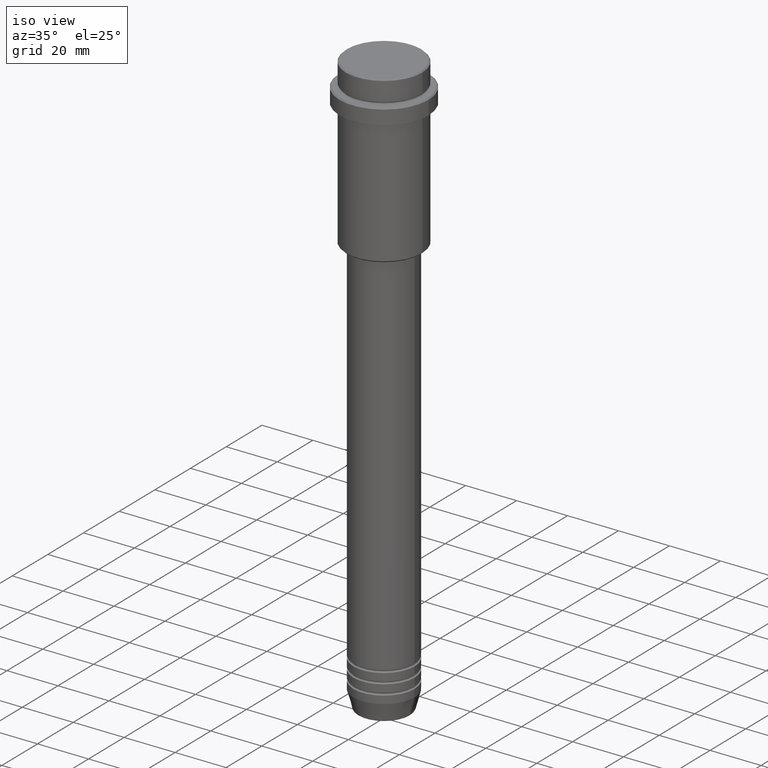
[diagram: clean part render]
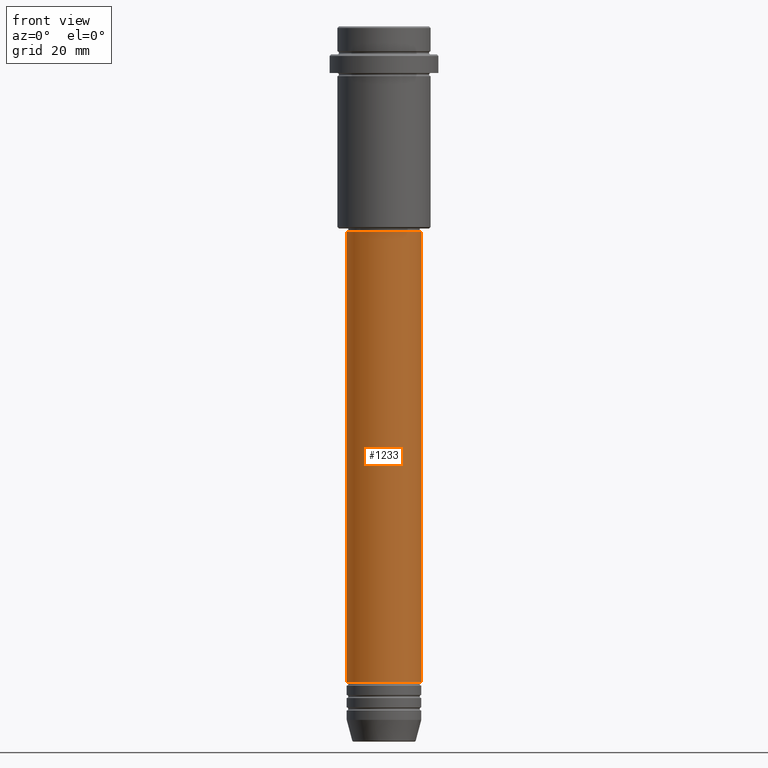
[diagram: tour spotlight — one face highlighted and labeled with its STEP entity id]
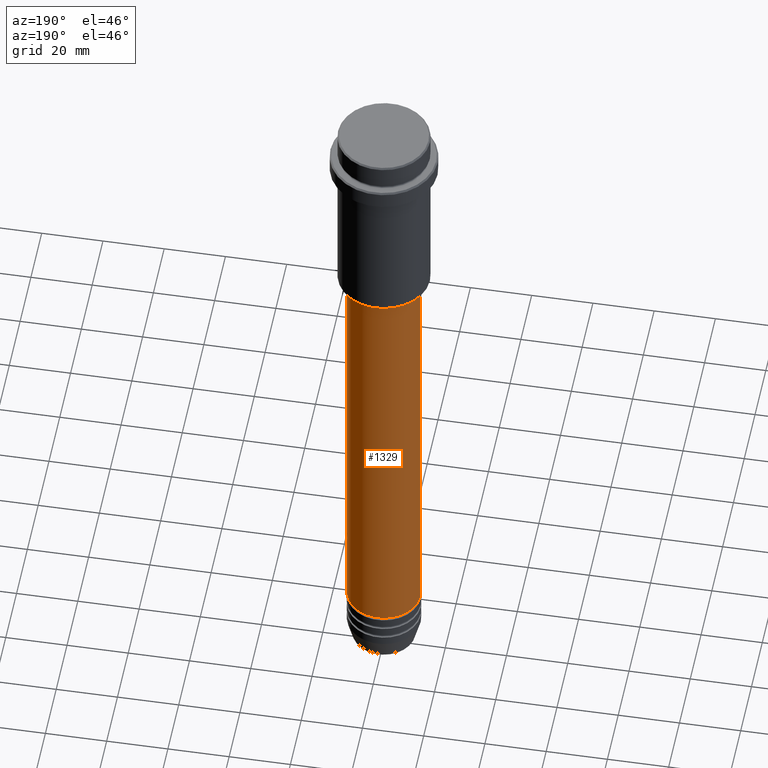
[diagram: tour spotlight — one face highlighted and labeled with its STEP entity id]
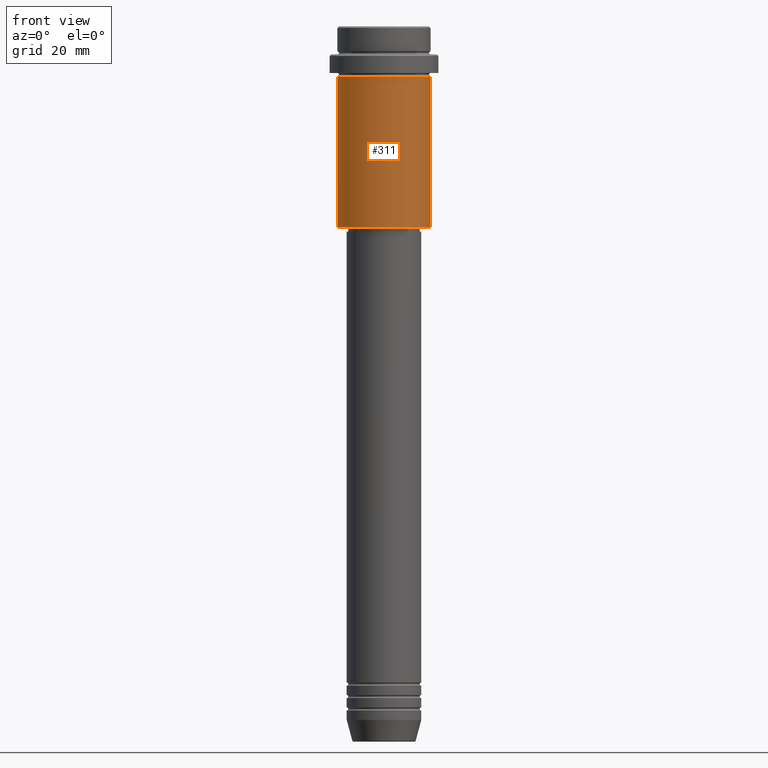
[diagram: tour spotlight — one face highlighted and labeled with its STEP entity id]
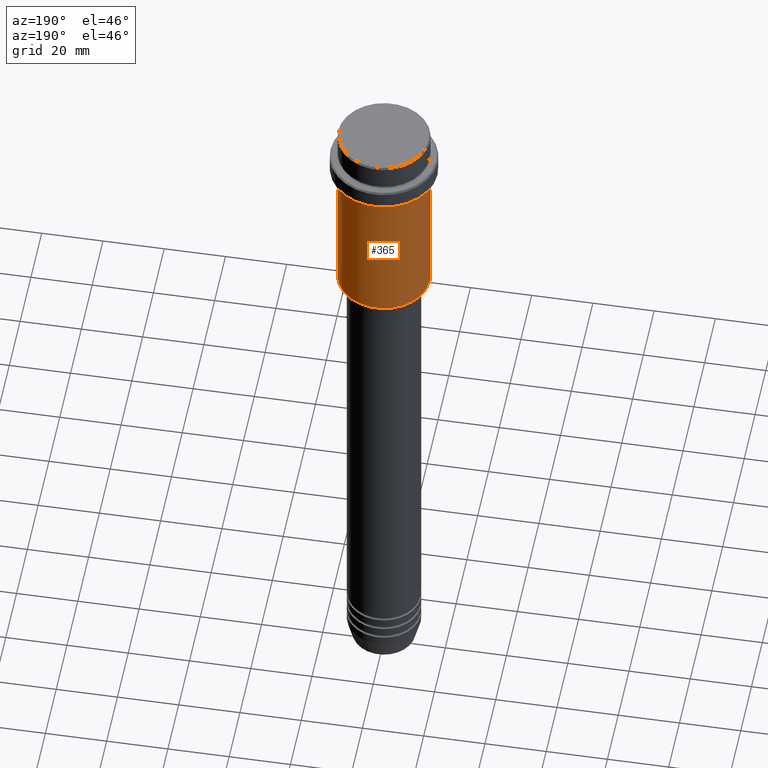
[diagram: tour spotlight — one face highlighted and labeled with its STEP entity id]
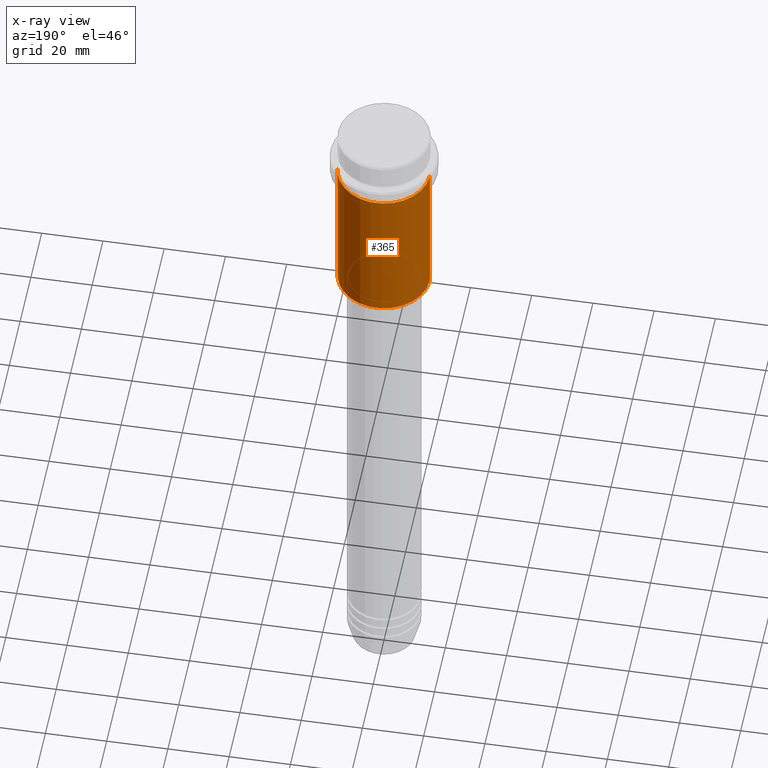
[diagram: x-ray of the same camera — body ghosted, this tour face saturated]
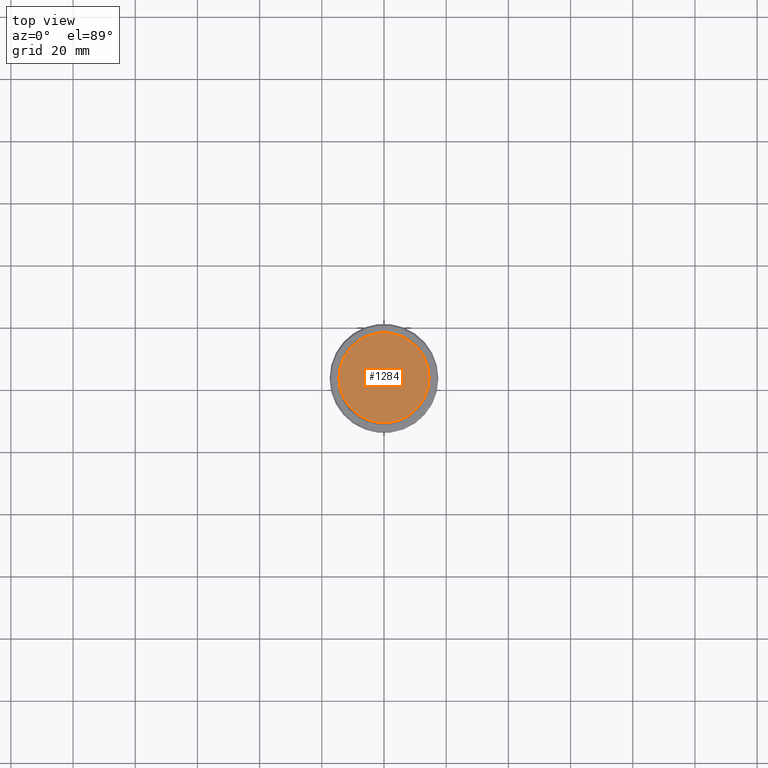
[diagram: tour spotlight — one face highlighted and labeled with its STEP entity id]
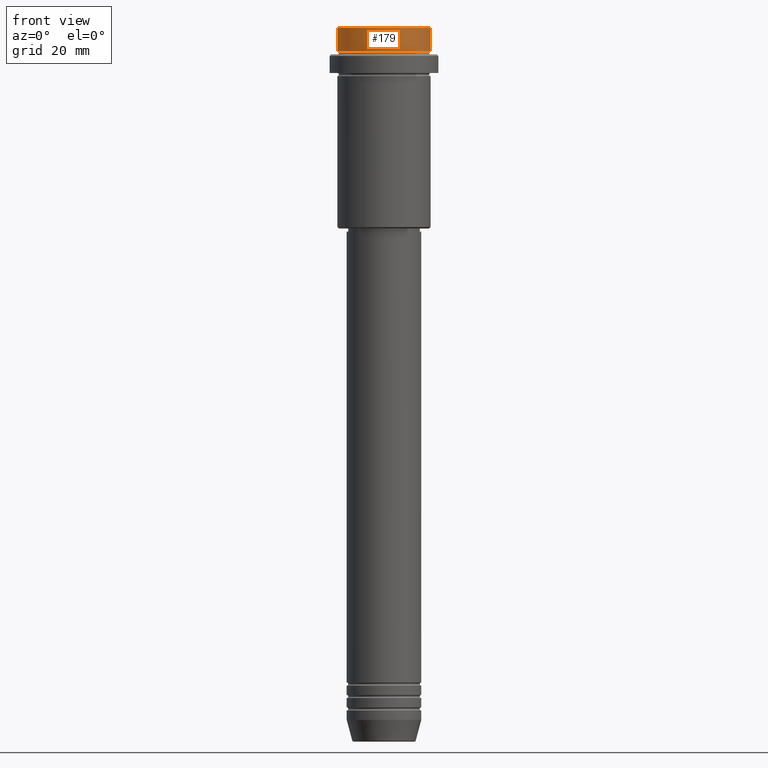
[diagram: tour spotlight — one face highlighted and labeled with its STEP entity id]
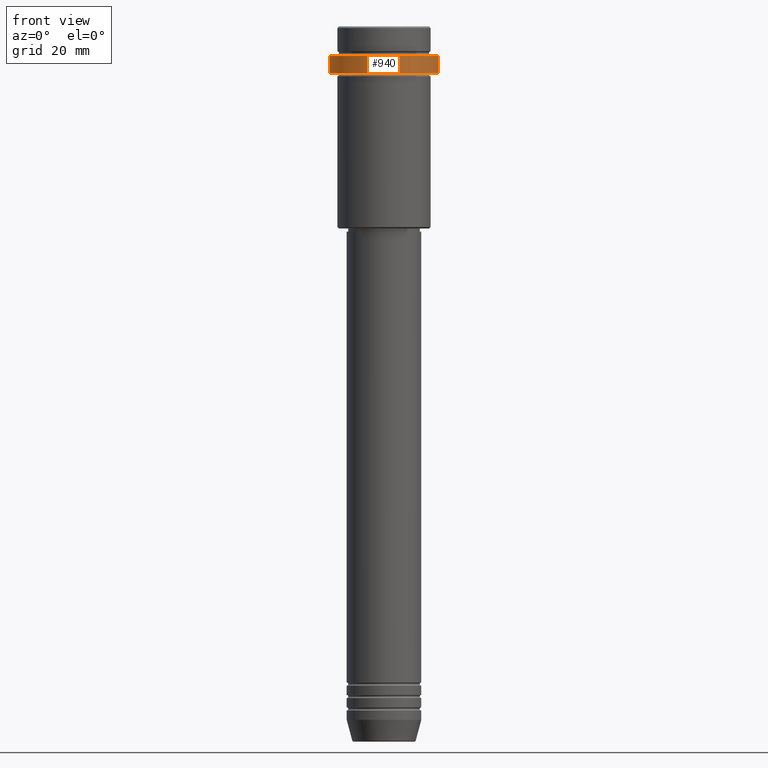
[diagram: tour spotlight — one face highlighted and labeled with its STEP entity id]
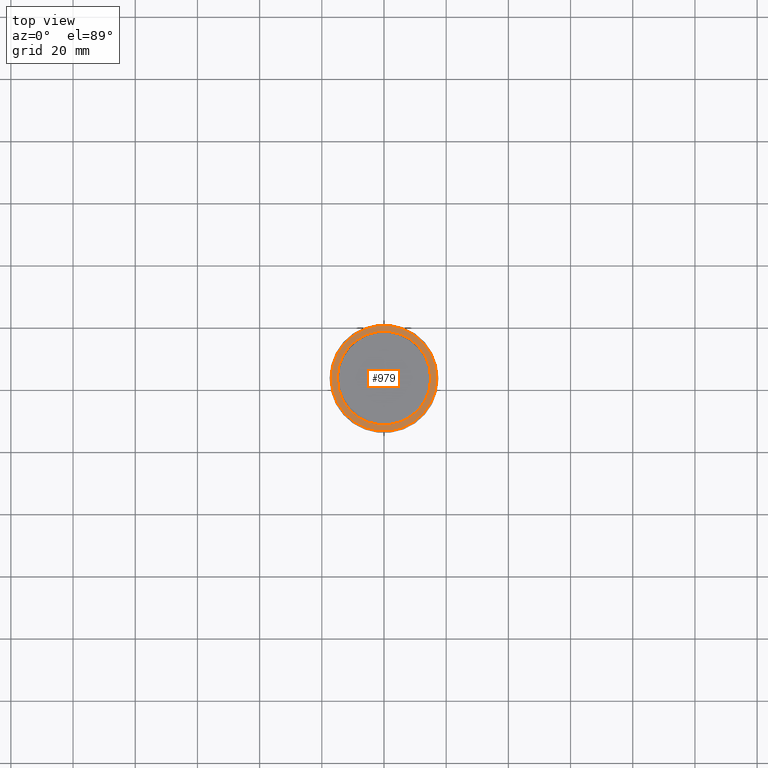
[diagram: tour spotlight — one face highlighted and labeled with its STEP entity id]
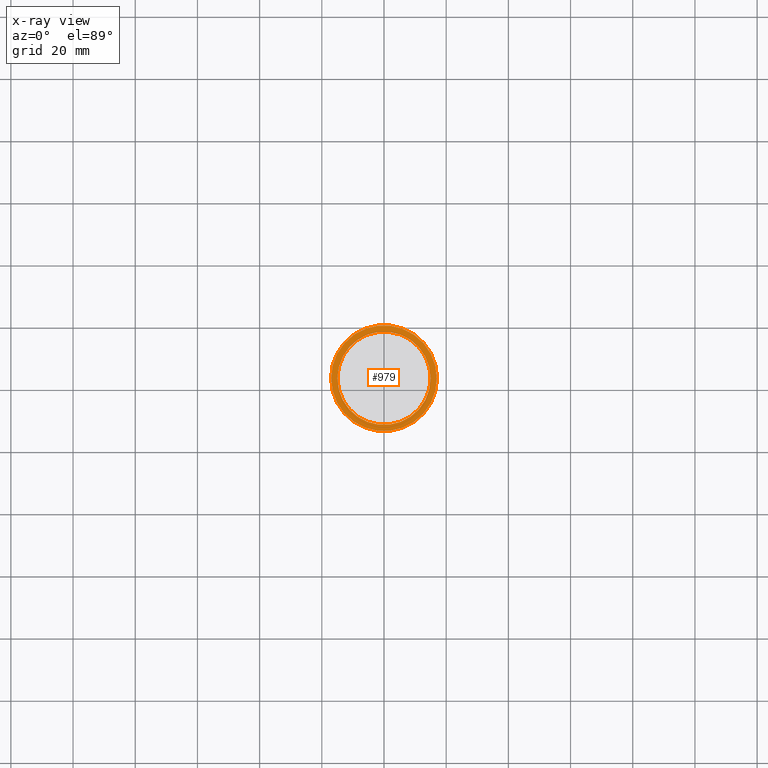
[diagram: x-ray of the same camera — body ghosted, this tour face saturated]
A machine part: a face-by-face anatomy tour. The part has 52 B-rep faces; the first image is the clean iso view, then the 8 largest visible faces are spotlighted one at a time (largest first), each with its STEP entity span.

Face 1 — front view, entity #1233. In plain terms, the highlighted cylindrical surface (partial cylindrical patch) has radius 12 mm, axis along (-0, -0, 1).
Definition (entity closure, byte-faithful):
#15 = DIRECTION ( 'NONE',  ( 1.000000000000000000, 0.000000000000000000, 0.000000000000000000 ) ) ;
#23 = CARTESIAN_POINT ( 'NONE',  ( 12.00000000000000000, 0.000000000000000000, -210.9999999999999147 ) ) ;
#28 = CARTESIAN_POINT ( 'NONE',  ( 0.000000000000000000, 0.000000000000000000, -66.00000000000000000 ) ) ;
#44 = DIRECTION ( 'NONE',  ( 1.000000000000000000, 0.000000000000000000, 0.000000000000000000 ) ) ;
#58 = VECTOR ( 'NONE', #211, 1000.000000000000000 ) ;
#62 = ORIENTED_EDGE ( 'NONE', *, *, #1092, .F. ) ;
#77 = VERTEX_POINT ( 'NONE', #1183 ) ;
#155 = CARTESIAN_POINT ( 'NONE',  ( 0.000000000000000000, 0.000000000000000000, -210.9999999999999147 ) ) ;
#160 = VERTEX_POINT ( 'NONE', #743 ) ;
#169 = DIRECTION ( 'NONE',  ( -0.000000000000000000, -0.000000000000000000, 1.000000000000000000 ) ) ;
#170 = DIRECTION ( 'NONE',  ( 1.000000000000000000, 0.000000000000000000, 0.000000000000000000 ) ) ;
#211 = DIRECTION ( 'NONE',  ( -0.000000000000000000, -0.000000000000000000, 1.000000000000000000 ) ) ;
#249 = VERTEX_POINT ( 'NONE', #23 ) ;
#282 = LINE ( 'NONE', #1116, #1068 ) ;
#338 = CIRCLE ( 'NONE', #797, 11.99999999999999822 ) ;
#363 = CIRCLE ( 'NONE', #848, 12.00000000000000000 ) ;
#398 = ORIENTED_EDGE ( 'NONE', *, *, #923, .T. ) ;
#560 = CYLINDRICAL_SURFACE ( 'NONE', #1181, 12.00000000000000000 ) ;
#599 = EDGE_CURVE ( 'NONE', #1245, #160, #338, .T. ) ;
#644 = CARTESIAN_POINT ( 'NONE',  ( -12.00000000000000000, 1.469576158976823947E-15, 0.000000000000000000 ) ) ;
#714 = EDGE_LOOP ( 'NONE', ( #62, #398, #798, #1243 ) ) ;
#743 = CARTESIAN_POINT ( 'NONE',  ( 11.99999999999999822, 0.000000000000000000, -66.00000000000000000 ) ) ;
#797 = AXIS2_PLACEMENT_3D ( 'NONE', #28, #1235, #44 ) ;
#798 = ORIENTED_EDGE ( 'NONE', *, *, #1306, .T. ) ;
#848 = AXIS2_PLACEMENT_3D ( 'NONE', #155, #1346, #170 ) ;
#923 = EDGE_CURVE ( 'NONE', #77, #249, #363, .T. ) ;
#992 = CARTESIAN_POINT ( 'NONE',  ( 0.000000000000000000, 0.000000000000000000, 0.000000000000000000 ) ) ;
#996 = CARTESIAN_POINT ( 'NONE',  ( -11.99999999999999822, 1.469576158976823750E-15, -66.00000000000000000 ) ) ;
#1068 = VECTOR ( 'NONE', #169, 1000.000000000000000 ) ;
#1092 = EDGE_CURVE ( 'NONE', #77, #1245, #1392, .T. ) ;
#1100 = DIRECTION ( 'NONE',  ( -0.000000000000000000, -0.000000000000000000, 1.000000000000000000 ) ) ;
#1116 = CARTESIAN_POINT ( 'NONE',  ( 12.00000000000000000, 0.000000000000000000, 0.000000000000000000 ) ) ;
#1181 = AXIS2_PLACEMENT_3D ( 'NONE', #992, #1100, #15 ) ;
#1183 = CARTESIAN_POINT ( 'NONE',  ( -12.00000000000000000, 1.469576158976823947E-15, -210.9999999999999147 ) ) ;
#1233 = ADVANCED_FACE ( 'NONE', ( #1330 ), #560, .T. ) ;
#1235 = DIRECTION ( 'NONE',  ( -0.000000000000000000, -0.000000000000000000, 1.000000000000000000 ) ) ;
#1243 = ORIENTED_EDGE ( 'NONE', *, *, #599, .F. ) ;
#1245 = VERTEX_POINT ( 'NONE', #996 ) ;
#1306 = EDGE_CURVE ( 'NONE', #249, #160, #282, .T. ) ;
#1330 = FACE_OUTER_BOUND ( 'NONE', #714, .T. ) ;
#1346 = DIRECTION ( 'NONE',  ( -0.000000000000000000, -0.000000000000000000, 1.000000000000000000 ) ) ;
#1392 = LINE ( 'NONE', #644, #58 ) ;

Face 2 — auxiliary view, entity #1329. In plain terms, the highlighted cylindrical surface (partial cylindrical patch) has radius 12 mm, axis along (-0, -0, 1).
Definition (entity closure, byte-faithful):
#4 = ORIENTED_EDGE ( 'NONE', *, *, #1092, .T. ) ;
#23 = CARTESIAN_POINT ( 'NONE',  ( 12.00000000000000000, 0.000000000000000000, -210.9999999999999147 ) ) ;
#58 = VECTOR ( 'NONE', #211, 1000.000000000000000 ) ;
#77 = VERTEX_POINT ( 'NONE', #1183 ) ;
#160 = VERTEX_POINT ( 'NONE', #743 ) ;
#169 = DIRECTION ( 'NONE',  ( -0.000000000000000000, -0.000000000000000000, 1.000000000000000000 ) ) ;
#174 = ORIENTED_EDGE ( 'NONE', *, *, #1306, .F. ) ;
#211 = DIRECTION ( 'NONE',  ( -0.000000000000000000, -0.000000000000000000, 1.000000000000000000 ) ) ;
#233 = CARTESIAN_POINT ( 'NONE',  ( 0.000000000000000000, 0.000000000000000000, -66.00000000000000000 ) ) ;
#247 = AXIS2_PLACEMENT_3D ( 'NONE', #233, #1094, #1314 ) ;
#249 = VERTEX_POINT ( 'NONE', #23 ) ;
#282 = LINE ( 'NONE', #1116, #1068 ) ;
#303 = AXIS2_PLACEMENT_3D ( 'NONE', #490, #1260, #716 ) ;
#433 = EDGE_CURVE ( 'NONE', #160, #1245, #1406, .T. ) ;
#490 = CARTESIAN_POINT ( 'NONE',  ( 0.000000000000000000, 0.000000000000000000, 0.000000000000000000 ) ) ;
#541 = DIRECTION ( 'NONE',  ( -0.000000000000000000, -0.000000000000000000, 1.000000000000000000 ) ) ;
#598 = FACE_OUTER_BOUND ( 'NONE', #1202, .T. ) ;
#644 = CARTESIAN_POINT ( 'NONE',  ( -12.00000000000000000, 1.469576158976823947E-15, 0.000000000000000000 ) ) ;
#716 = DIRECTION ( 'NONE',  ( 1.000000000000000000, 0.000000000000000000, 0.000000000000000000 ) ) ;
#743 = CARTESIAN_POINT ( 'NONE',  ( 11.99999999999999822, 0.000000000000000000, -66.00000000000000000 ) ) ;
#799 = CIRCLE ( 'NONE', #1179, 12.00000000000000000 ) ;
#880 = CARTESIAN_POINT ( 'NONE',  ( 0.000000000000000000, 0.000000000000000000, -210.9999999999999147 ) ) ;
#996 = CARTESIAN_POINT ( 'NONE',  ( -11.99999999999999822, 1.469576158976823750E-15, -66.00000000000000000 ) ) ;
#1026 = EDGE_CURVE ( 'NONE', #249, #77, #799, .T. ) ;
#1068 = VECTOR ( 'NONE', #169, 1000.000000000000000 ) ;
#1092 = EDGE_CURVE ( 'NONE', #77, #1245, #1392, .T. ) ;
#1094 = DIRECTION ( 'NONE',  ( -0.000000000000000000, -0.000000000000000000, 1.000000000000000000 ) ) ;
#1116 = CARTESIAN_POINT ( 'NONE',  ( 12.00000000000000000, 0.000000000000000000, 0.000000000000000000 ) ) ;
#1179 = AXIS2_PLACEMENT_3D ( 'NONE', #880, #541, #1303 ) ;
#1183 = CARTESIAN_POINT ( 'NONE',  ( -12.00000000000000000, 1.469576158976823947E-15, -210.9999999999999147 ) ) ;
#1202 = EDGE_LOOP ( 'NONE', ( #1327, #4, #1337, #174 ) ) ;
#1245 = VERTEX_POINT ( 'NONE', #996 ) ;
#1260 = DIRECTION ( 'NONE',  ( -0.000000000000000000, -0.000000000000000000, 1.000000000000000000 ) ) ;
#1303 = DIRECTION ( 'NONE',  ( 1.000000000000000000, 0.000000000000000000, 0.000000000000000000 ) ) ;
#1306 = EDGE_CURVE ( 'NONE', #249, #160, #282, .T. ) ;
#1314 = DIRECTION ( 'NONE',  ( 1.000000000000000000, 0.000000000000000000, 0.000000000000000000 ) ) ;
#1327 = ORIENTED_EDGE ( 'NONE', *, *, #1026, .T. ) ;
#1329 = ADVANCED_FACE ( 'NONE', ( #598 ), #1340, .T. ) ;
#1337 = ORIENTED_EDGE ( 'NONE', *, *, #433, .F. ) ;
#1340 = CYLINDRICAL_SURFACE ( 'NONE', #303, 12.00000000000000000 ) ;
#1392 = LINE ( 'NONE', #644, #58 ) ;
#1406 = CIRCLE ( 'NONE', #247, 11.99999999999999822 ) ;

Face 3 — front view, entity #311. In plain terms, the highlighted cylindrical surface (partial cylindrical patch) has radius 15 mm, axis along (-0, -0, 1).
Definition (entity closure, byte-faithful):
#7 = EDGE_CURVE ( 'NONE', #284, #506, #357, .T. ) ;
#108 = EDGE_CURVE ( 'NONE', #404, #1041, #864, .T. ) ;
#130 = ORIENTED_EDGE ( 'NONE', *, *, #108, .T. ) ;
#138 = DIRECTION ( 'NONE',  ( -0.000000000000000000, -0.000000000000000000, 1.000000000000000000 ) ) ;
#175 = DIRECTION ( 'NONE',  ( -0.000000000000000000, -0.000000000000000000, 1.000000000000000000 ) ) ;
#204 = DIRECTION ( 'NONE',  ( 1.000000000000000000, 0.000000000000000000, 0.000000000000000000 ) ) ;
#284 = VERTEX_POINT ( 'NONE', #881 ) ;
#309 = CARTESIAN_POINT ( 'NONE',  ( 0.000000000000000000, 0.000000000000000000, -64.50000000000004263 ) ) ;
#311 = ADVANCED_FACE ( 'NONE', ( #671 ), #1214, .T. ) ;
#357 = CIRCLE ( 'NONE', #1019, 15.00000000000000178 ) ;
#358 = AXIS2_PLACEMENT_3D ( 'NONE', #309, #628, #861 ) ;
#404 = VERTEX_POINT ( 'NONE', #643 ) ;
#506 = VERTEX_POINT ( 'NONE', #1184 ) ;
#576 = DIRECTION ( 'NONE',  ( 1.000000000000000000, 0.000000000000000000, 0.000000000000000000 ) ) ;
#593 = CARTESIAN_POINT ( 'NONE',  ( -15.00000000000000000, 1.836970198721029589E-15, 0.000000000000000000 ) ) ;
#628 = DIRECTION ( 'NONE',  ( -0.000000000000000000, -0.000000000000000000, 1.000000000000000000 ) ) ;
#629 = DIRECTION ( 'NONE',  ( -0.000000000000000000, -0.000000000000000000, 1.000000000000000000 ) ) ;
#643 = CARTESIAN_POINT ( 'NONE',  ( -15.00000000000000000, 1.836970198721029589E-15, -64.50000000000004263 ) ) ;
#671 = FACE_OUTER_BOUND ( 'NONE', #931, .T. ) ;
#759 = CARTESIAN_POINT ( 'NONE',  ( 15.00000000000000000, 0.000000000000000000, -64.50000000000004263 ) ) ;
#785 = CARTESIAN_POINT ( 'NONE',  ( 0.000000000000000000, 0.000000000000000000, 0.000000000000000000 ) ) ;
#809 = LINE ( 'NONE', #593, #825 ) ;
#816 = DIRECTION ( 'NONE',  ( -0.000000000000000000, -0.000000000000000000, 1.000000000000000000 ) ) ;
#825 = VECTOR ( 'NONE', #816, 1000.000000000000000 ) ;
#826 = ORIENTED_EDGE ( 'NONE', *, *, #1294, .T. ) ;
#827 = VECTOR ( 'NONE', #175, 1000.000000000000000 ) ;
#861 = DIRECTION ( 'NONE',  ( -1.000000000000000000, 0.000000000000000000, 0.000000000000000000 ) ) ;
#864 = CIRCLE ( 'NONE', #358, 15.00000000000000000 ) ;
#881 = CARTESIAN_POINT ( 'NONE',  ( -15.00000000000000355, 1.836970198721029983E-15, -16.00000000000000000 ) ) ;
#895 = EDGE_CURVE ( 'NONE', #404, #284, #809, .T. ) ;
#931 = EDGE_LOOP ( 'NONE', ( #1135, #130, #826, #1024 ) ) ;
#959 = AXIS2_PLACEMENT_3D ( 'NONE', #785, #138, #576 ) ;
#1019 = AXIS2_PLACEMENT_3D ( 'NONE', #1290, #629, #204 ) ;
#1024 = ORIENTED_EDGE ( 'NONE', *, *, #7, .F. ) ;
#1041 = VERTEX_POINT ( 'NONE', #759 ) ;
#1131 = LINE ( 'NONE', #1227, #827 ) ;
#1135 = ORIENTED_EDGE ( 'NONE', *, *, #895, .F. ) ;
#1184 = CARTESIAN_POINT ( 'NONE',  ( 15.00000000000000178, 0.000000000000000000, -16.00000000000000000 ) ) ;
#1214 = CYLINDRICAL_SURFACE ( 'NONE', #959, 15.00000000000000000 ) ;
#1227 = CARTESIAN_POINT ( 'NONE',  ( 15.00000000000000000, 0.000000000000000000, 0.000000000000000000 ) ) ;
#1290 = CARTESIAN_POINT ( 'NONE',  ( 0.000000000000000000, 0.000000000000000000, -16.00000000000000000 ) ) ;
#1294 = EDGE_CURVE ( 'NONE', #1041, #506, #1131, .T. ) ;

Face 4 — auxiliary view, entity #365. An x-ray twin of the same camera follows (body ghosted, this face saturated) — the face is partly hidden behind the body. In plain terms, the highlighted cylindrical surface (partial cylindrical patch) has radius 15 mm, axis along (-0, -0, 1).
Definition (entity closure, byte-faithful):
#175 = DIRECTION ( 'NONE',  ( -0.000000000000000000, -0.000000000000000000, 1.000000000000000000 ) ) ;
#178 = AXIS2_PLACEMENT_3D ( 'NONE', #1258, #278, #597 ) ;
#278 = DIRECTION ( 'NONE',  ( -0.000000000000000000, -0.000000000000000000, 1.000000000000000000 ) ) ;
#284 = VERTEX_POINT ( 'NONE', #881 ) ;
#365 = ADVANCED_FACE ( 'NONE', ( #1357 ), #395, .T. ) ;
#368 = CARTESIAN_POINT ( 'NONE',  ( 0.000000000000000000, 0.000000000000000000, 0.000000000000000000 ) ) ;
#395 = CYLINDRICAL_SURFACE ( 'NONE', #938, 15.00000000000000000 ) ;
#404 = VERTEX_POINT ( 'NONE', #643 ) ;
#424 = CARTESIAN_POINT ( 'NONE',  ( 0.000000000000000000, 0.000000000000000000, -16.00000000000000000 ) ) ;
#441 = CIRCLE ( 'NONE', #942, 15.00000000000000178 ) ;
#506 = VERTEX_POINT ( 'NONE', #1184 ) ;
#525 = DIRECTION ( 'NONE',  ( -0.000000000000000000, -0.000000000000000000, 1.000000000000000000 ) ) ;
#593 = CARTESIAN_POINT ( 'NONE',  ( -15.00000000000000000, 1.836970198721029589E-15, 0.000000000000000000 ) ) ;
#597 = DIRECTION ( 'NONE',  ( -1.000000000000000000, 0.000000000000000000, 0.000000000000000000 ) ) ;
#633 = EDGE_CURVE ( 'NONE', #1041, #404, #778, .T. ) ;
#643 = CARTESIAN_POINT ( 'NONE',  ( -15.00000000000000000, 1.836970198721029589E-15, -64.50000000000004263 ) ) ;
#678 = ORIENTED_EDGE ( 'NONE', *, *, #1112, .F. ) ;
#728 = EDGE_LOOP ( 'NONE', ( #914, #930, #678, #1349 ) ) ;
#759 = CARTESIAN_POINT ( 'NONE',  ( 15.00000000000000000, 0.000000000000000000, -64.50000000000004263 ) ) ;
#778 = CIRCLE ( 'NONE', #178, 15.00000000000000000 ) ;
#804 = DIRECTION ( 'NONE',  ( -0.000000000000000000, -0.000000000000000000, 1.000000000000000000 ) ) ;
#809 = LINE ( 'NONE', #593, #825 ) ;
#816 = DIRECTION ( 'NONE',  ( -0.000000000000000000, -0.000000000000000000, 1.000000000000000000 ) ) ;
#825 = VECTOR ( 'NONE', #816, 1000.000000000000000 ) ;
#827 = VECTOR ( 'NONE', #175, 1000.000000000000000 ) ;
#881 = CARTESIAN_POINT ( 'NONE',  ( -15.00000000000000355, 1.836970198721029983E-15, -16.00000000000000000 ) ) ;
#895 = EDGE_CURVE ( 'NONE', #404, #284, #809, .T. ) ;
#914 = ORIENTED_EDGE ( 'NONE', *, *, #633, .T. ) ;
#930 = ORIENTED_EDGE ( 'NONE', *, *, #895, .T. ) ;
#938 = AXIS2_PLACEMENT_3D ( 'NONE', #368, #804, #1222 ) ;
#942 = AXIS2_PLACEMENT_3D ( 'NONE', #424, #525, #971 ) ;
#971 = DIRECTION ( 'NONE',  ( 1.000000000000000000, 0.000000000000000000, 0.000000000000000000 ) ) ;
#1041 = VERTEX_POINT ( 'NONE', #759 ) ;
#1112 = EDGE_CURVE ( 'NONE', #506, #284, #441, .T. ) ;
#1131 = LINE ( 'NONE', #1227, #827 ) ;
#1184 = CARTESIAN_POINT ( 'NONE',  ( 15.00000000000000178, 0.000000000000000000, -16.00000000000000000 ) ) ;
#1222 = DIRECTION ( 'NONE',  ( 1.000000000000000000, 0.000000000000000000, 0.000000000000000000 ) ) ;
#1227 = CARTESIAN_POINT ( 'NONE',  ( 15.00000000000000000, 0.000000000000000000, 0.000000000000000000 ) ) ;
#1258 = CARTESIAN_POINT ( 'NONE',  ( 0.000000000000000000, 0.000000000000000000, -64.50000000000004263 ) ) ;
#1294 = EDGE_CURVE ( 'NONE', #1041, #506, #1131, .T. ) ;
#1349 = ORIENTED_EDGE ( 'NONE', *, *, #1294, .F. ) ;
#1357 = FACE_OUTER_BOUND ( 'NONE', #728, .T. ) ;

Face 5 — top view, entity #1284. In plain terms, the highlighted planar face has unit normal (0, -0, 1).
Definition (entity closure, byte-faithful):
#35 = AXIS2_PLACEMENT_3D ( 'NONE', #1025, #294, #815 ) ;
#113 = DIRECTION ( 'NONE',  ( 1.000000000000000000, 0.000000000000000000, 0.000000000000000000 ) ) ;
#142 = CARTESIAN_POINT ( 'NONE',  ( 0.000000000000000000, 0.000000000000000000, 0.000000000000000000 ) ) ;
#220 = CARTESIAN_POINT ( 'NONE',  ( 0.000000000000000000, 0.000000000000000000, 0.000000000000000000 ) ) ;
#241 = VERTEX_POINT ( 'NONE', #994 ) ;
#294 = DIRECTION ( 'NONE',  ( 0.000000000000000000, -0.000000000000000000, 1.000000000000000000 ) ) ;
#364 = FACE_OUTER_BOUND ( 'NONE', #413, .T. ) ;
#407 = PLANE ( 'NONE',  #35 ) ;
#413 = EDGE_LOOP ( 'NONE', ( #668, #812 ) ) ;
#549 = CARTESIAN_POINT ( 'NONE',  ( -14.49999999999995559, 0.000000000000000000, 0.000000000000000000 ) ) ;
#620 = AXIS2_PLACEMENT_3D ( 'NONE', #142, #808, #1374 ) ;
#657 = DIRECTION ( 'NONE',  ( -0.000000000000000000, -0.000000000000000000, 1.000000000000000000 ) ) ;
#668 = ORIENTED_EDGE ( 'NONE', *, *, #1317, .T. ) ;
#687 = CIRCLE ( 'NONE', #1042, 14.49999999999995559 ) ;
#754 = VERTEX_POINT ( 'NONE', #549 ) ;
#808 = DIRECTION ( 'NONE',  ( -0.000000000000000000, -0.000000000000000000, 1.000000000000000000 ) ) ;
#812 = ORIENTED_EDGE ( 'NONE', *, *, #1139, .T. ) ;
#815 = DIRECTION ( 'NONE',  ( 1.000000000000000000, 0.000000000000000000, 0.000000000000000000 ) ) ;
#913 = CIRCLE ( 'NONE', #620, 14.49999999999995559 ) ;
#994 = CARTESIAN_POINT ( 'NONE',  ( 14.49999999999995559, 1.806354028742343041E-15, 0.000000000000000000 ) ) ;
#1025 = CARTESIAN_POINT ( 'NONE',  ( 0.000000000000000000, 0.000000000000000000, 0.000000000000000000 ) ) ;
#1042 = AXIS2_PLACEMENT_3D ( 'NONE', #220, #657, #113 ) ;
#1139 = EDGE_CURVE ( 'NONE', #241, #754, #687, .T. ) ;
#1284 = ADVANCED_FACE ( 'NONE', ( #364 ), #407, .T. ) ;
#1317 = EDGE_CURVE ( 'NONE', #754, #241, #913, .T. ) ;
#1374 = DIRECTION ( 'NONE',  ( 1.000000000000000000, 0.000000000000000000, 0.000000000000000000 ) ) ;

Face 6 — front view, entity #179. In plain terms, the highlighted cylindrical surface (partial cylindrical patch) has radius 15 mm, axis along (-0, -0, 1).
Definition (entity closure, byte-faithful):
#9 = AXIS2_PLACEMENT_3D ( 'NONE', #465, #74, #1356 ) ;
#74 = DIRECTION ( 'NONE',  ( -0.000000000000000000, -0.000000000000000000, 1.000000000000000000 ) ) ;
#80 = DIRECTION ( 'NONE',  ( -0.000000000000000000, -0.000000000000000000, 1.000000000000000000 ) ) ;
#112 = DIRECTION ( 'NONE',  ( 0.000000000000000000, 0.000000000000000000, -1.000000000000000000 ) ) ;
#139 = VERTEX_POINT ( 'NONE', #191 ) ;
#165 = DIRECTION ( 'NONE',  ( -0.000000000000000000, -0.000000000000000000, 1.000000000000000000 ) ) ;
#179 = ADVANCED_FACE ( 'NONE', ( #1103 ), #699, .T. ) ;
#191 = CARTESIAN_POINT ( 'NONE',  ( -15.00000000000000000, 1.836970198721029589E-15, -7.999999999999998224 ) ) ;
#314 = VERTEX_POINT ( 'NONE', #471 ) ;
#324 = CARTESIAN_POINT ( 'NONE',  ( 15.00000000000000000, 0.000000000000000000, -0.5000000000000662803 ) ) ;
#353 = ORIENTED_EDGE ( 'NONE', *, *, #732, .T. ) ;
#431 = CARTESIAN_POINT ( 'NONE',  ( -15.00000000000000000, 1.836970198721029589E-15, -0.5000000000000662803 ) ) ;
#465 = CARTESIAN_POINT ( 'NONE',  ( 0.000000000000000000, 0.000000000000000000, 0.000000000000000000 ) ) ;
#471 = CARTESIAN_POINT ( 'NONE',  ( 15.00000000000000000, 0.000000000000000000, -7.999999999999998224 ) ) ;
#540 = CARTESIAN_POINT ( 'NONE',  ( 0.000000000000000000, 0.000000000000000000, -0.5000000000000662803 ) ) ;
#586 = AXIS2_PLACEMENT_3D ( 'NONE', #540, #112, #1413 ) ;
#602 = DIRECTION ( 'NONE',  ( 1.000000000000000000, 0.000000000000000000, 0.000000000000000000 ) ) ;
#649 = CARTESIAN_POINT ( 'NONE',  ( 15.00000000000000000, 0.000000000000000000, 0.000000000000000000 ) ) ;
#664 = AXIS2_PLACEMENT_3D ( 'NONE', #1241, #165, #602 ) ;
#699 = CYLINDRICAL_SURFACE ( 'NONE', #9, 15.00000000000000000 ) ;
#732 = EDGE_CURVE ( 'NONE', #783, #1073, #961, .T. ) ;
#752 = LINE ( 'NONE', #649, #1270 ) ;
#783 = VERTEX_POINT ( 'NONE', #324 ) ;
#810 = EDGE_CURVE ( 'NONE', #139, #314, #823, .T. ) ;
#823 = CIRCLE ( 'NONE', #664, 15.00000000000000000 ) ;
#873 = VECTOR ( 'NONE', #80, 1000.000000000000000 ) ;
#961 = CIRCLE ( 'NONE', #586, 15.00000000000000000 ) ;
#1050 = EDGE_LOOP ( 'NONE', ( #1195, #1098, #1226, #353 ) ) ;
#1059 = CARTESIAN_POINT ( 'NONE',  ( -15.00000000000000000, 1.836970198721029589E-15, 0.000000000000000000 ) ) ;
#1070 = EDGE_CURVE ( 'NONE', #314, #783, #752, .T. ) ;
#1073 = VERTEX_POINT ( 'NONE', #431 ) ;
#1098 = ORIENTED_EDGE ( 'NONE', *, *, #810, .T. ) ;
#1103 = FACE_OUTER_BOUND ( 'NONE', #1050, .T. ) ;
#1104 = EDGE_CURVE ( 'NONE', #139, #1073, #1288, .T. ) ;
#1195 = ORIENTED_EDGE ( 'NONE', *, *, #1104, .F. ) ;
#1226 = ORIENTED_EDGE ( 'NONE', *, *, #1070, .T. ) ;
#1241 = CARTESIAN_POINT ( 'NONE',  ( 0.000000000000000000, 0.000000000000000000, -7.999999999999998224 ) ) ;
#1270 = VECTOR ( 'NONE', #1273, 1000.000000000000000 ) ;
#1273 = DIRECTION ( 'NONE',  ( -0.000000000000000000, -0.000000000000000000, 1.000000000000000000 ) ) ;
#1288 = LINE ( 'NONE', #1059, #873 ) ;
#1356 = DIRECTION ( 'NONE',  ( 1.000000000000000000, 0.000000000000000000, 0.000000000000000000 ) ) ;
#1413 = DIRECTION ( 'NONE',  ( 1.000000000000000000, 0.000000000000000000, 0.000000000000000000 ) ) ;

Face 7 — front view, entity #940. In plain terms, the highlighted cylindrical surface (partial cylindrical patch) has radius 17.5 mm, axis along (-0, -0, 1).
Definition (entity closure, byte-faithful):
#30 = CIRCLE ( 'NONE', #389, 17.50000000000000000 ) ;
#49 = DIRECTION ( 'NONE',  ( 1.000000000000000000, 0.000000000000000000, 0.000000000000000000 ) ) ;
#89 = DIRECTION ( 'NONE',  ( 1.000000000000000000, 0.000000000000000000, 0.000000000000000000 ) ) ;
#115 = CARTESIAN_POINT ( 'NONE',  ( -17.50000000000000000, 2.143131898507868248E-15, -15.00000000000000000 ) ) ;
#124 = VERTEX_POINT ( 'NONE', #932 ) ;
#149 = ORIENTED_EDGE ( 'NONE', *, *, #330, .T. ) ;
#186 = CARTESIAN_POINT ( 'NONE',  ( 17.50000000000000000, 0.000000000000000000, -15.00000000000000000 ) ) ;
#269 = EDGE_LOOP ( 'NONE', ( #1056, #830, #771, #149 ) ) ;
#285 = VERTEX_POINT ( 'NONE', #186 ) ;
#325 = VECTOR ( 'NONE', #993, 1000.000000000000000 ) ;
#329 = VERTEX_POINT ( 'NONE', #115 ) ;
#330 = EDGE_CURVE ( 'NONE', #124, #903, #542, .T. ) ;
#355 = EDGE_CURVE ( 'NONE', #329, #285, #30, .T. ) ;
#389 = AXIS2_PLACEMENT_3D ( 'NONE', #640, #1368, #89 ) ;
#457 = LINE ( 'NONE', #1218, #325 ) ;
#462 = EDGE_CURVE ( 'NONE', #329, #903, #457, .T. ) ;
#484 = CARTESIAN_POINT ( 'NONE',  ( -17.50000000000000000, 2.143131898507868248E-15, -9.500000000000026645 ) ) ;
#503 = CARTESIAN_POINT ( 'NONE',  ( 0.000000000000000000, 0.000000000000000000, -9.500000000000026645 ) ) ;
#542 = CIRCLE ( 'NONE', #1384, 17.50000000000000000 ) ;
#640 = CARTESIAN_POINT ( 'NONE',  ( 0.000000000000000000, 0.000000000000000000, -15.00000000000000000 ) ) ;
#707 = CYLINDRICAL_SURFACE ( 'NONE', #1153, 17.50000000000000000 ) ;
#708 = DIRECTION ( 'NONE',  ( 0.000000000000000000, 0.000000000000000000, -1.000000000000000000 ) ) ;
#718 = DIRECTION ( 'NONE',  ( 1.000000000000000000, 0.000000000000000000, 0.000000000000000000 ) ) ;
#771 = ORIENTED_EDGE ( 'NONE', *, *, #884, .T. ) ;
#830 = ORIENTED_EDGE ( 'NONE', *, *, #355, .T. ) ;
#884 = EDGE_CURVE ( 'NONE', #285, #124, #986, .T. ) ;
#903 = VERTEX_POINT ( 'NONE', #484 ) ;
#917 = DIRECTION ( 'NONE',  ( -0.000000000000000000, -0.000000000000000000, 1.000000000000000000 ) ) ;
#924 = CARTESIAN_POINT ( 'NONE',  ( 0.000000000000000000, 0.000000000000000000, 0.000000000000000000 ) ) ;
#928 = CARTESIAN_POINT ( 'NONE',  ( 17.50000000000000000, 0.000000000000000000, 0.000000000000000000 ) ) ;
#932 = CARTESIAN_POINT ( 'NONE',  ( 17.50000000000000000, 0.000000000000000000, -9.500000000000026645 ) ) ;
#940 = ADVANCED_FACE ( 'NONE', ( #943 ), #707, .T. ) ;
#943 = FACE_OUTER_BOUND ( 'NONE', #269, .T. ) ;
#986 = LINE ( 'NONE', #928, #1021 ) ;
#993 = DIRECTION ( 'NONE',  ( -0.000000000000000000, -0.000000000000000000, 1.000000000000000000 ) ) ;
#1021 = VECTOR ( 'NONE', #917, 1000.000000000000000 ) ;
#1056 = ORIENTED_EDGE ( 'NONE', *, *, #462, .F. ) ;
#1133 = DIRECTION ( 'NONE',  ( -0.000000000000000000, -0.000000000000000000, 1.000000000000000000 ) ) ;
#1153 = AXIS2_PLACEMENT_3D ( 'NONE', #924, #1133, #718 ) ;
#1218 = CARTESIAN_POINT ( 'NONE',  ( -17.50000000000000000, 2.143131898507868248E-15, 0.000000000000000000 ) ) ;
#1368 = DIRECTION ( 'NONE',  ( -0.000000000000000000, -0.000000000000000000, 1.000000000000000000 ) ) ;
#1384 = AXIS2_PLACEMENT_3D ( 'NONE', #503, #708, #49 ) ;

Face 8 — top view, entity #979. An x-ray twin of the same camera follows (body ghosted, this face saturated) — the face is partly hidden behind the body. In plain terms, the highlighted planar face has unit normal (0, -0, 1).
Definition (entity closure, byte-faithful):
#21 = DIRECTION ( 'NONE',  ( -0.000000000000000000, -0.000000000000000000, 1.000000000000000000 ) ) ;
#25 = DIRECTION ( 'NONE',  ( 0.000000000000000000, 0.000000000000000000, -1.000000000000000000 ) ) ;
#87 = CIRCLE ( 'NONE', #762, 14.99999999999999289 ) ;
#205 = CIRCLE ( 'NONE', #476, 14.99999999999999289 ) ;
#260 = VERTEX_POINT ( 'NONE', #610 ) ;
#273 = AXIS2_PLACEMENT_3D ( 'NONE', #394, #829, #1032 ) ;
#283 = CARTESIAN_POINT ( 'NONE',  ( 0.000000000000000000, 0.000000000000000000, -9.000000000000000000 ) ) ;
#291 = ORIENTED_EDGE ( 'NONE', *, *, #991, .T. ) ;
#316 = CARTESIAN_POINT ( 'NONE',  ( 14.99999999999999289, 0.000000000000000000, -9.000000000000000000 ) ) ;
#336 = DIRECTION ( 'NONE',  ( 1.000000000000000000, 0.000000000000000000, 0.000000000000000000 ) ) ;
#340 = AXIS2_PLACEMENT_3D ( 'NONE', #1111, #447, #891 ) ;
#352 = DIRECTION ( 'NONE',  ( 1.000000000000000000, 0.000000000000000000, 0.000000000000000000 ) ) ;
#375 = FACE_OUTER_BOUND ( 'NONE', #1250, .T. ) ;
#394 = CARTESIAN_POINT ( 'NONE',  ( 0.000000000000000000, 14.49999999999999467, -9.000000000000000000 ) ) ;
#402 = PLANE ( 'NONE',  #273 ) ;
#447 = DIRECTION ( 'NONE',  ( -0.000000000000000000, -0.000000000000000000, 1.000000000000000000 ) ) ;
#451 = CARTESIAN_POINT ( 'NONE',  ( 0.000000000000000000, 0.000000000000000000, -9.000000000000000000 ) ) ;
#476 = AXIS2_PLACEMENT_3D ( 'NONE', #283, #737, #619 ) ;
#546 = CIRCLE ( 'NONE', #988, 16.99999999999996092 ) ;
#594 = ORIENTED_EDGE ( 'NONE', *, *, #1246, .T. ) ;
#610 = CARTESIAN_POINT ( 'NONE',  ( -14.99999999999999289, 1.836970198721028800E-15, -9.000000000000000000 ) ) ;
#619 = DIRECTION ( 'NONE',  ( 1.000000000000000000, 0.000000000000000000, 0.000000000000000000 ) ) ;
#650 = CARTESIAN_POINT ( 'NONE',  ( 16.99999999999996092, 2.112515728529182095E-15, -9.000000000000000000 ) ) ;
#737 = DIRECTION ( 'NONE',  ( 0.000000000000000000, 0.000000000000000000, -1.000000000000000000 ) ) ;
#762 = AXIS2_PLACEMENT_3D ( 'NONE', #1324, #25, #336 ) ;
#780 = EDGE_LOOP ( 'NONE', ( #1362, #291 ) ) ;
#786 = VERTEX_POINT ( 'NONE', #650 ) ;
#792 = VERTEX_POINT ( 'NONE', #1299 ) ;
#829 = DIRECTION ( 'NONE',  ( 0.000000000000000000, -0.000000000000000000, 1.000000000000000000 ) ) ;
#891 = DIRECTION ( 'NONE',  ( 1.000000000000000000, 0.000000000000000000, 0.000000000000000000 ) ) ;
#963 = CIRCLE ( 'NONE', #340, 16.99999999999996092 ) ;
#979 = ADVANCED_FACE ( 'NONE', ( #375, #1229 ), #402, .T. ) ;
#988 = AXIS2_PLACEMENT_3D ( 'NONE', #451, #21, #352 ) ;
#991 = EDGE_CURVE ( 'NONE', #260, #1030, #205, .T. ) ;
#1030 = VERTEX_POINT ( 'NONE', #316 ) ;
#1032 = DIRECTION ( 'NONE',  ( 1.000000000000000000, 0.000000000000000000, 0.000000000000000000 ) ) ;
#1077 = ORIENTED_EDGE ( 'NONE', *, *, #1159, .T. ) ;
#1111 = CARTESIAN_POINT ( 'NONE',  ( 0.000000000000000000, 0.000000000000000000, -9.000000000000000000 ) ) ;
#1159 = EDGE_CURVE ( 'NONE', #792, #786, #963, .T. ) ;
#1229 = FACE_BOUND ( 'NONE', #780, .T. ) ;
#1246 = EDGE_CURVE ( 'NONE', #786, #792, #546, .T. ) ;
#1250 = EDGE_LOOP ( 'NONE', ( #1077, #594 ) ) ;
#1277 = EDGE_CURVE ( 'NONE', #1030, #260, #87, .T. ) ;
#1299 = CARTESIAN_POINT ( 'NONE',  ( -16.99999999999996092, 0.000000000000000000, -9.000000000000000000 ) ) ;
#1324 = CARTESIAN_POINT ( 'NONE',  ( 0.000000000000000000, 0.000000000000000000, -9.000000000000000000 ) ) ;
#1362 = ORIENTED_EDGE ( 'NONE', *, *, #1277, .T. ) ;